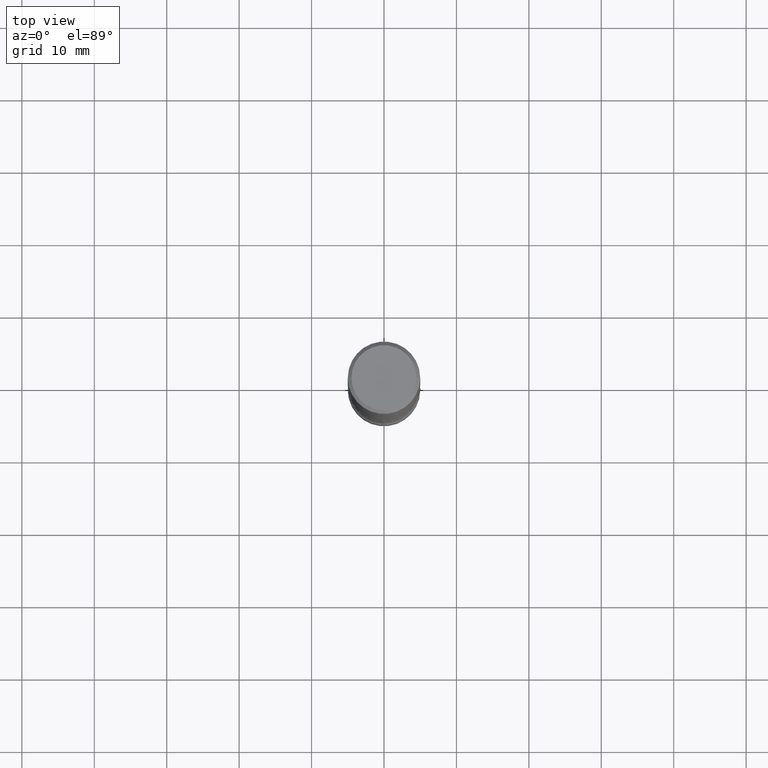
[diagram: clean part render]
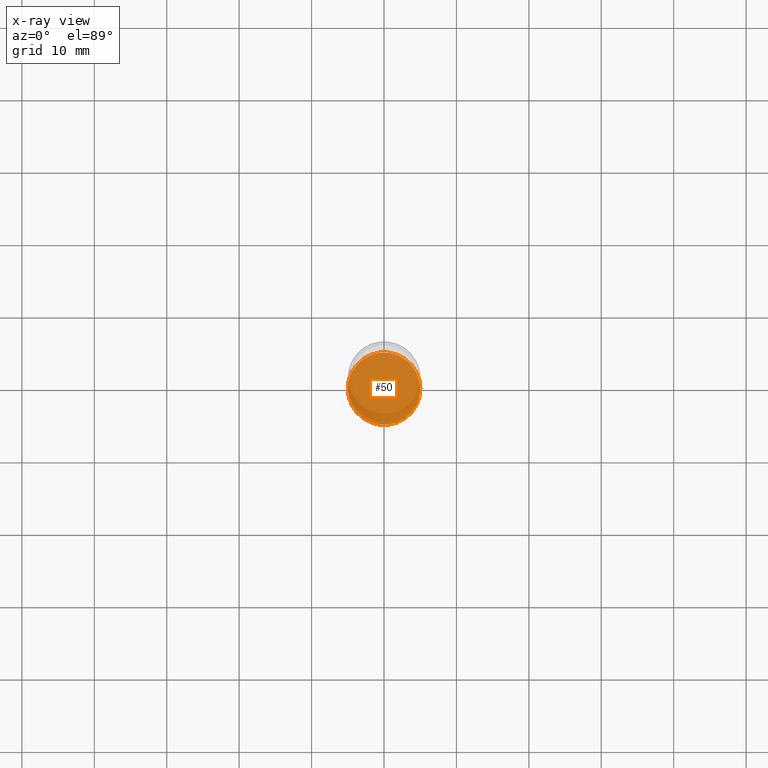
[diagram: x-ray — body ghosted, one internal face saturated and labeled with its STEP entity id]
A machine part, top view, then the same camera in x-ray: the body is ghosted and one INTERNAL B-rep face — a face not visible from any outside direction — is saturated and labeled: STEP entity #50.
In plain terms, the highlighted planar face has unit normal (0, -0, -1).
Its self-contained STEP definition (entity closure, byte-faithful):
#21 = AXIS2_PLACEMENT_3D ( 'NONE', #512, #36, #549 ) ;
#27 = DIRECTION ( 'NONE',  ( -1.000000000000000000, 6.982962677686265922E-15, -4.876176775795935793E-29 ) ) ;
#36 = DIRECTION ( 'NONE',  ( -2.445468806185136597E-29, 3.491481338843145583E-15, 1.000000000000000000 ) ) ;
#50 = ADVANCED_FACE ( 'NONE', ( #285 ), #70, .F. ) ;
#52 = ORIENTED_EDGE ( 'NONE', *, *, #141, .T. ) ;
#66 = CARTESIAN_POINT ( 'NONE',  ( 8.472571225909025905E-29, -1.209658624655596531E-14, -3.464600000000000346 ) ) ;
#70 = PLANE ( 'NONE',  #508 ) ;
#75 = CARTESIAN_POINT ( 'NONE',  ( 0.1968500000000001082, -1.347118244965850692E-14, -3.464600000000000346 ) ) ;
#85 = CARTESIAN_POINT ( 'NONE',  ( -0.1968500000000001082, -1.138518097276347833E-14, -3.464600000000000346 ) ) ;
#87 = EDGE_CURVE ( 'NONE', #488, #236, #176, .T. ) ;
#111 = CARTESIAN_POINT ( 'NONE',  ( 8.472571225909025905E-29, -1.209658624655596531E-14, -3.464600000000000346 ) ) ;
#141 = EDGE_CURVE ( 'NONE', #236, #488, #428, .T. ) ;
#155 = DIRECTION ( 'NONE',  ( 2.438088387897960049E-29, -3.491481338843145188E-15, -1.000000000000000000 ) ) ;
#176 = CIRCLE ( 'NONE', #528, 0.1968500000000001082 ) ;
#236 = VERTEX_POINT ( 'NONE', #75 ) ;
#241 = ORIENTED_EDGE ( 'NONE', *, *, #87, .T. ) ;
#285 = FACE_OUTER_BOUND ( 'NONE', #365, .T. ) ;
#292 = DIRECTION ( 'NONE',  ( 1.000000000000000000, -6.982962677686265133E-15, 0.000000000000000000 ) ) ;
#365 = EDGE_LOOP ( 'NONE', ( #52, #241 ) ) ;
#428 = CIRCLE ( 'NONE', #21, 0.1968500000000001082 ) ;
#459 = DIRECTION ( 'NONE',  ( -2.445468806185136597E-29, 3.491481338843145583E-15, 1.000000000000000000 ) ) ;
#488 = VERTEX_POINT ( 'NONE', #85 ) ;
#508 = AXIS2_PLACEMENT_3D ( 'NONE', #66, #155, #27 ) ;
#512 = CARTESIAN_POINT ( 'NONE',  ( 8.472571225909025905E-29, -1.209658624655596531E-14, -3.464600000000000346 ) ) ;
#528 = AXIS2_PLACEMENT_3D ( 'NONE', #111, #459, #292 ) ;
#549 = DIRECTION ( 'NONE',  ( 1.000000000000000000, -6.982962677686265133E-15, 0.000000000000000000 ) ) ;